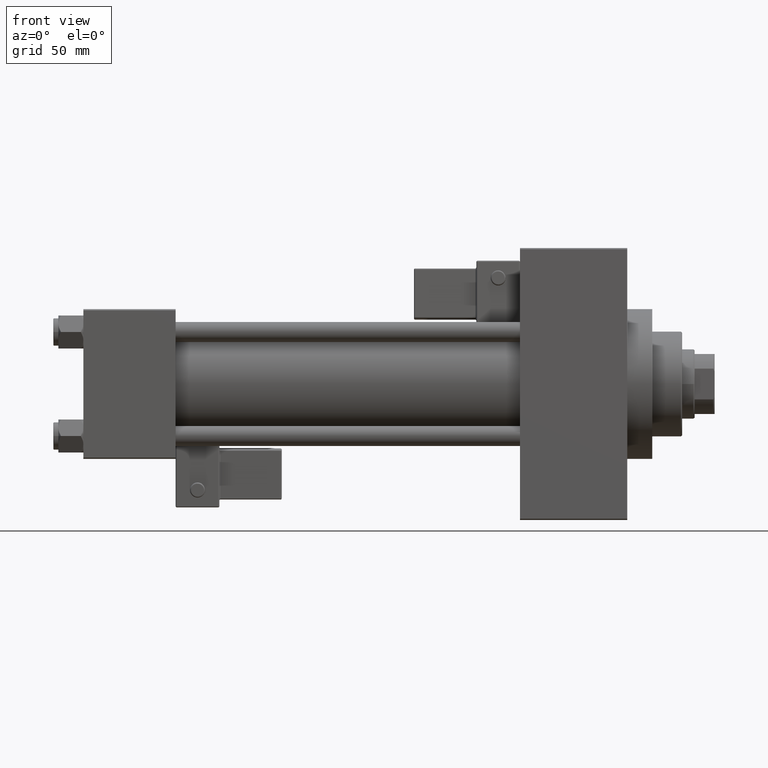
[diagram: clean part render]
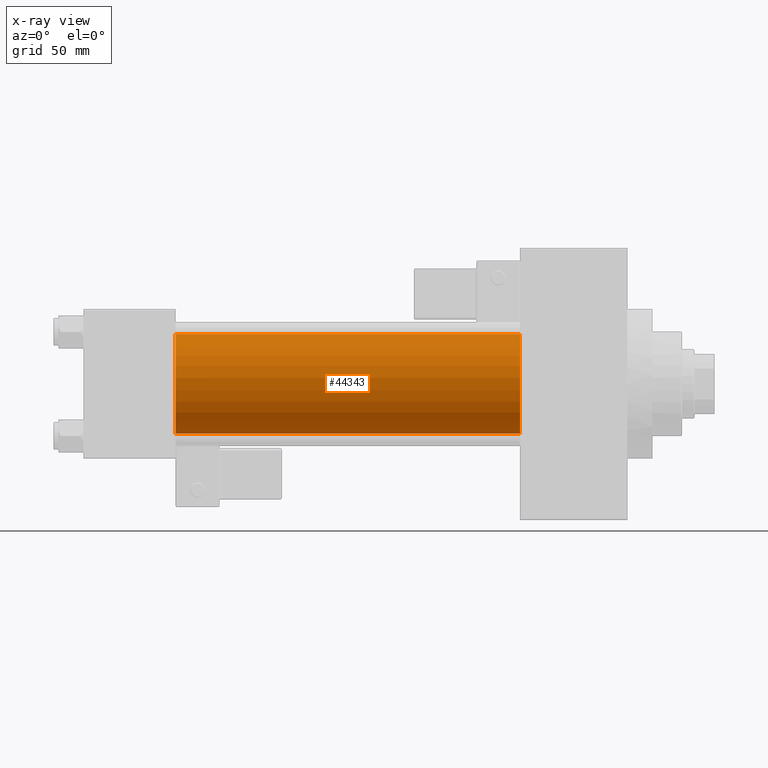
[diagram: x-ray — body ghosted, one internal face saturated and labeled with its STEP entity id]
A machine part, front view, then the same camera in x-ray: the body is ghosted and one INTERNAL B-rep face — a face not visible from any outside direction — is saturated and labeled: STEP entity #44343.
In plain terms, the highlighted cylindrical surface (partial cylindrical patch) has radius 20 mm, axis along (-1, -0, -0).
Its self-contained STEP definition (entity closure, byte-faithful):
#1679 = DIRECTION ( 'NONE',  ( -1.000000000000000000, -0.000000000000000000, -0.000000000000000000 ) ) ;
#4310 = AXIS2_PLACEMENT_3D ( 'NONE', #36116, #1679, #17017 ) ;
#5449 = CYLINDRICAL_SURFACE ( 'NONE', #4310, 20.00000000000000000 ) ;
#8878 = CIRCLE ( 'NONE', #12106, 20.00000000000000000 ) ;
#9545 = CARTESIAN_POINT ( 'NONE',  ( 37.00000000000000000, -2.602085213965210642E-15, 0.000000000000000000 ) ) ;
#10282 = EDGE_CURVE ( 'NONE', #10503, #21696, #8878, .T. ) ;
#10378 = CARTESIAN_POINT ( 'NONE',  ( 175.0000000000000284, -2.602085213965210642E-15, 20.00000000000000000 ) ) ;
#10503 = VERTEX_POINT ( 'NONE', #26601 ) ;
#11095 = ORIENTED_EDGE ( 'NONE', *, *, #22959, .F. ) ;
#12106 = AXIS2_PLACEMENT_3D ( 'NONE', #9545, #13073, #27644 ) ;
#13073 = DIRECTION ( 'NONE',  ( 1.000000000000000000, 0.000000000000000000, 0.000000000000000000 ) ) ;
#13133 = LINE ( 'NONE', #17159, #44919 ) ;
#15321 = LINE ( 'NONE', #22875, #23672 ) ;
#16178 = VERTEX_POINT ( 'NONE', #46267 ) ;
#17017 = DIRECTION ( 'NONE',  ( 0.000000000000000000, 0.000000000000000000, 1.000000000000000000 ) ) ;
#17159 = CARTESIAN_POINT ( 'NONE',  ( 175.0000000000000284, -1.527916156705042519E-16, -20.00000000000000000 ) ) ;
#19343 = DIRECTION ( 'NONE',  ( -1.000000000000000000, -0.000000000000000000, -0.000000000000000000 ) ) ;
#19789 = DIRECTION ( 'NONE',  ( 1.000000000000000000, 0.000000000000000000, 0.000000000000000000 ) ) ;
#20646 = ORIENTED_EDGE ( 'NONE', *, *, #28722, .T. ) ;
#21696 = VERTEX_POINT ( 'NONE', #26152 ) ;
#22875 = CARTESIAN_POINT ( 'NONE',  ( 175.0000000000000284, -2.602085213965210642E-15, 20.00000000000000000 ) ) ;
#22959 = EDGE_CURVE ( 'NONE', #24004, #10503, #15321, .T. ) ;
#23672 = VECTOR ( 'NONE', #19343, 1000.000000000000000 ) ;
#24004 = VERTEX_POINT ( 'NONE', #10378 ) ;
#24713 = CIRCLE ( 'NONE', #25530, 20.00000000000000000 ) ;
#25530 = AXIS2_PLACEMENT_3D ( 'NONE', #31322, #19789, #43149 ) ;
#26152 = CARTESIAN_POINT ( 'NONE',  ( 37.00000000000000000, -1.527916156705042519E-16, -20.00000000000000000 ) ) ;
#26601 = CARTESIAN_POINT ( 'NONE',  ( 37.00000000000000000, -2.602085213965210642E-15, 20.00000000000000000 ) ) ;
#27644 = DIRECTION ( 'NONE',  ( 0.000000000000000000, 0.000000000000000000, -1.000000000000000000 ) ) ;
#28722 = EDGE_CURVE ( 'NONE', #24004, #16178, #24713, .T. ) ;
#31088 = EDGE_CURVE ( 'NONE', #16178, #21696, #13133, .T. ) ;
#31322 = CARTESIAN_POINT ( 'NONE',  ( 175.0000000000000284, -2.602085213965210642E-15, 0.000000000000000000 ) ) ;
#36116 = CARTESIAN_POINT ( 'NONE',  ( 175.0000000000000284, -2.602085213965210642E-15, 0.000000000000000000 ) ) ;
#39883 = FACE_OUTER_BOUND ( 'NONE', #44927, .T. ) ;
#40233 = ORIENTED_EDGE ( 'NONE', *, *, #10282, .F. ) ;
#43149 = DIRECTION ( 'NONE',  ( 0.000000000000000000, 0.000000000000000000, -1.000000000000000000 ) ) ;
#44055 = DIRECTION ( 'NONE',  ( -1.000000000000000000, -0.000000000000000000, -0.000000000000000000 ) ) ;
#44343 = ADVANCED_FACE ( 'NONE', ( #39883 ), #5449, .F. ) ;
#44919 = VECTOR ( 'NONE', #44055, 1000.000000000000000 ) ;
#44927 = EDGE_LOOP ( 'NONE', ( #20646, #45906, #40233, #11095 ) ) ;
#45906 = ORIENTED_EDGE ( 'NONE', *, *, #31088, .T. ) ;
#46267 = CARTESIAN_POINT ( 'NONE',  ( 175.0000000000000284, -1.527916156705042519E-16, -20.00000000000000000 ) ) ;